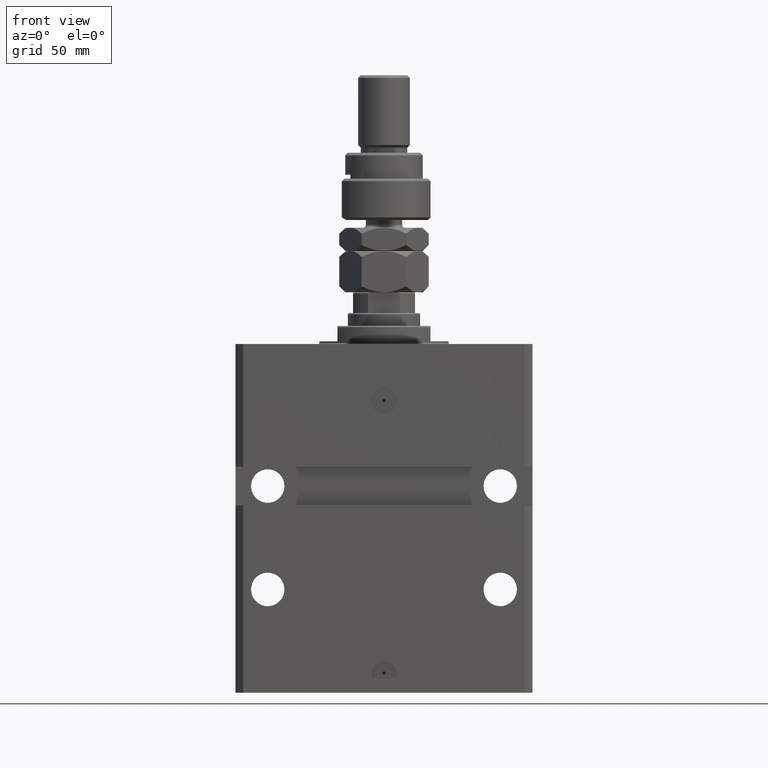
[diagram: clean part render]
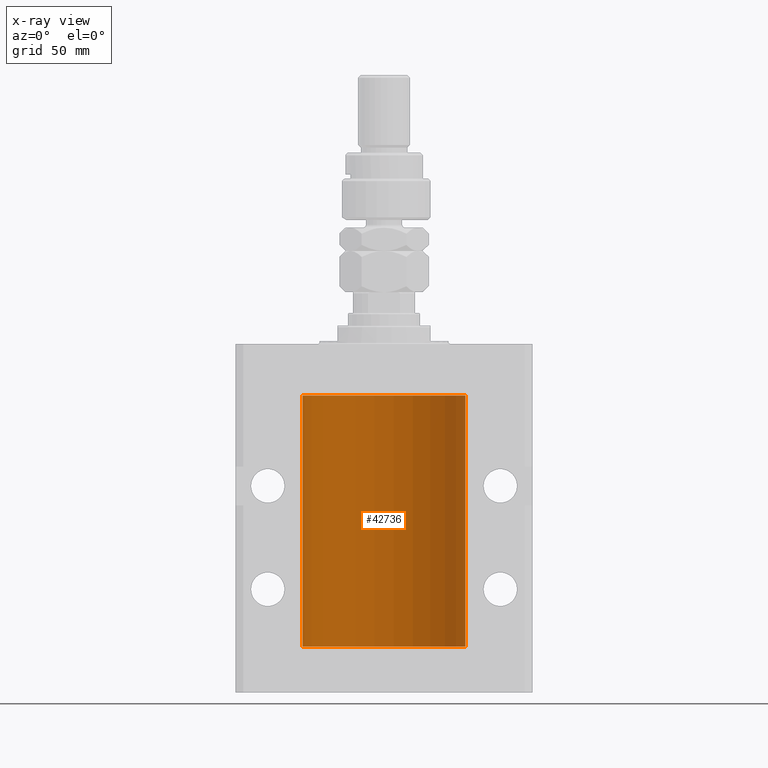
[diagram: x-ray — body ghosted, one internal face saturated and labeled with its STEP entity id]
A machine part, front view, then the same camera in x-ray: the body is ghosted and one INTERNAL B-rep face — a face not visible from any outside direction — is saturated and labeled: STEP entity #42736.
In plain terms, the highlighted cylindrical surface (partial cylindrical patch) has radius 31.5 mm, axis along (0, 0, 1).
Its self-contained STEP definition (entity closure, byte-faithful):
#32 = VERTEX_POINT ( 'NONE', #19271 ) ;
#309 = CARTESIAN_POINT ( 'NONE',  ( -31.49379784581975983, 0.6250577973157598333, -29.16284184848847971 ) ) ;
#891 = CYLINDRICAL_SURFACE ( 'NONE', #40898, 31.50000000000000000 ) ;
#1158 = CARTESIAN_POINT ( 'NONE',  ( 31.49526225382467359, 0.5586305680866429091, -113.6747616062215229 ) ) ;
#1171 = CARTESIAN_POINT ( 'NONE',  ( 31.50000000000000000, -2.492939093807799249E-15, -114.6250000000000000 ) ) ;
#2053 = CARTESIAN_POINT ( 'NONE',  ( 31.50000000000000000, 0.000000000000000000, -117.0999999999999943 ) ) ;
#2196 = CARTESIAN_POINT ( 'NONE',  ( 31.50000000000006395, 3.442404531757459093E-13, -28.37499999999677058 ) ) ;
#3159 = CARTESIAN_POINT ( 'NONE',  ( 31.50000000000000000, 1.559778271476245299E-15, -29.62500000000000000 ) ) ;
#3361 = DIRECTION ( 'NONE',  ( -0.000000000000000000, -0.000000000000000000, 1.000000000000000000 ) ) ;
#3708 = CARTESIAN_POINT ( 'NONE',  ( 31.49966575203785268, 0.1636755595825563903, -114.6087303082118893 ) ) ;
#4343 = EDGE_CURVE ( 'NONE', #47359, #36061, #10410, .T. ) ;
#4527 = LINE ( 'NONE', #4797, #8738 ) ;
#4619 = ORIENTED_EDGE ( 'NONE', *, *, #16271, .F. ) ;
#4797 = CARTESIAN_POINT ( 'NONE',  ( -31.50000000000000000, 3.857637417314161900E-15, -117.0999999999999943 ) ) ;
#4924 = EDGE_CURVE ( 'NONE', #48876, #36061, #27543, .T. ) ;
#4972 = EDGE_CURVE ( 'NONE', #11986, #13727, #38192, .T. ) ;
#5017 = DIRECTION ( 'NONE',  ( -0.000000000000000000, -0.000000000000000000, 1.000000000000000000 ) ) ;
#7570 = ORIENTED_EDGE ( 'NONE', *, *, #10464, .T. ) ;
#7691 = CARTESIAN_POINT ( 'NONE',  ( 31.49851501686590893, 0.3150934959385818801, -114.5459472188385917 ) ) ;
#7986 = VECTOR ( 'NONE', #22650, 1000.000000000000000 ) ;
#8179 = CARTESIAN_POINT ( 'NONE',  ( 31.50000000000000000, 0.08261130139622085977, -29.62500000000000000 ) ) ;
#8738 = VECTOR ( 'NONE', #20740, 1000.000000000000000 ) ;
#9237 = CARTESIAN_POINT ( 'NONE',  ( 0.000000000000000000, 0.000000000000000000, -20.00000000000000355 ) ) ;
#9368 = CARTESIAN_POINT ( 'NONE',  ( 31.49853627283156499, 0.3253078817183361338, -28.44140989403645747 ) ) ;
#9926 = CARTESIAN_POINT ( 'NONE',  ( -31.49526081842315151, 0.5587119163470788408, -114.3251151309305413 ) ) ;
#10410 = LINE ( 'NONE', #42838, #7986 ) ;
#10464 = EDGE_CURVE ( 'NONE', #47127, #29589, #42903, .T. ) ;
#10646 = ORIENTED_EDGE ( 'NONE', *, *, #30470, .T. ) ;
#11383 = CARTESIAN_POINT ( 'NONE',  ( 31.49770674525947101, 0.3844410175904603433, -29.49948347834465068 ) ) ;
#11493 = CARTESIAN_POINT ( 'NONE',  ( -31.49853548231893541, 0.3253851488062241559, -29.55855470525682094 ) ) ;
#11840 = VECTOR ( 'NONE', #5017, 1000.000000000000000 ) ;
#11973 = ORIENTED_EDGE ( 'NONE', *, *, #35814, .T. ) ;
#11986 = VERTEX_POINT ( 'NONE', #36033 ) ;
#12038 = ORIENTED_EDGE ( 'NONE', *, *, #4972, .T. ) ;
#12162 = CARTESIAN_POINT ( 'NONE',  ( 31.49966575203785268, 0.1636755595825553355, -29.60873030821187157 ) ) ;
#12268 = EDGE_CURVE ( 'NONE', #49400, #21559, #30804, .T. ) ;
#12433 = EDGE_CURVE ( 'NONE', #47359, #18984, #46615, .T. ) ;
#13528 = CARTESIAN_POINT ( 'NONE',  ( 31.50000000000000000, 1.559778271476245299E-15, -29.62500000000000000 ) ) ;
#13727 = VERTEX_POINT ( 'NONE', #1171 ) ;
#13868 = CARTESIAN_POINT ( 'NONE',  ( 31.49379899281745665, 0.6250000000082756024, -28.99999999999905853 ) ) ;
#14406 = ORIENTED_EDGE ( 'NONE', *, *, #39325, .T. ) ;
#14610 = AXIS2_PLACEMENT_3D ( 'NONE', #17326, #25585, #49004 ) ;
#15204 = CARTESIAN_POINT ( 'NONE',  ( -31.50000000000000000, 3.857637417314161900E-15, -20.00000000000000355 ) ) ;
#15991 = CARTESIAN_POINT ( 'NONE',  ( -31.50000000000000000, 0.1631661150515231473, -29.62499999999986144 ) ) ;
#16042 = DIRECTION ( 'NONE',  ( -0.000000000000000000, -0.000000000000000000, 1.000000000000000000 ) ) ;
#16271 = EDGE_CURVE ( 'NONE', #11986, #27000, #18872, .T. ) ;
#16305 = CARTESIAN_POINT ( 'NONE',  ( 31.50000000000000000, 0.000000000000000000, -117.0999999999999943 ) ) ;
#17092 = CARTESIAN_POINT ( 'NONE',  ( -31.50000000000006395, 3.480981129463732167E-13, -114.6250000000032401 ) ) ;
#17326 = CARTESIAN_POINT ( 'NONE',  ( 0.000000000000000000, 0.000000000000000000, -117.0999999999999943 ) ) ;
#17357 = CARTESIAN_POINT ( 'NONE',  ( 31.49853627283156499, 0.3253078817183396310, -113.4414098940364681 ) ) ;
#17883 = CARTESIAN_POINT ( 'NONE',  ( -31.49770767031180441, 0.3843648832734344878, -113.5004608125965717 ) ) ;
#18872 = CIRCLE ( 'NONE', #14610, 31.50000000000000000 ) ;
#18984 = VERTEX_POINT ( 'NONE', #40937 ) ;
#19017 = ORIENTED_EDGE ( 'NONE', *, *, #12433, .T. ) ;
#19038 = EDGE_CURVE ( 'NONE', #49400, #18984, #4527, .T. ) ;
#19128 = ORIENTED_EDGE ( 'NONE', *, *, #4924, .T. ) ;
#19271 = CARTESIAN_POINT ( 'NONE',  ( 31.49379899281745665, 0.6250000000082825968, -113.9999999999990621 ) ) ;
#19671 = VERTEX_POINT ( 'NONE', #41019 ) ;
#19995 = CARTESIAN_POINT ( 'NONE',  ( -31.50000000000000000, 6.759071642563815395E-15, -28.37500000000000355 ) ) ;
#20740 = DIRECTION ( 'NONE',  ( -0.000000000000000000, -0.000000000000000000, 1.000000000000000000 ) ) ;
#21355 = CARTESIAN_POINT ( 'NONE',  ( 31.49379899281745665, 0.6250000000082825968, -113.9999999999990621 ) ) ;
#21559 = VERTEX_POINT ( 'NONE', #30123 ) ;
#22020 = CARTESIAN_POINT ( 'NONE',  ( -31.50000000000000000, 3.857637417314161900E-15, -117.0999999999999943 ) ) ;
#22140 = CARTESIAN_POINT ( 'NONE',  ( -31.49999999999999289, 0.08259258789479095864, -113.3749999999999858 ) ) ;
#22387 = ORIENTED_EDGE ( 'NONE', *, *, #19038, .F. ) ;
#22650 = DIRECTION ( 'NONE',  ( -0.000000000000000000, -0.000000000000000000, 1.000000000000000000 ) ) ;
#22658 = CARTESIAN_POINT ( 'NONE',  ( 31.50000000000000000, 0.1631291455194384676, -28.37500000000015277 ) ) ;
#23404 = CARTESIAN_POINT ( 'NONE',  ( 31.49527883250257432, 0.5574151849338155884, -114.3263860845475364 ) ) ;
#23911 = CARTESIAN_POINT ( 'NONE',  ( 31.49770674525946390, 0.3844410175904657834, -114.4994834783446436 ) ) ;
#23981 = CARTESIAN_POINT ( 'NONE',  ( -31.49999999999999289, 0.08259258789479796692, -28.37500000000000711 ) ) ;
#24327 = CARTESIAN_POINT ( 'NONE',  ( 31.50000000000000000, 0.1631291455194407158, -113.3750000000001563 ) ) ;
#24710 = ORIENTED_EDGE ( 'NONE', *, *, #12268, .T. ) ;
#24773 = CARTESIAN_POINT ( 'NONE',  ( -31.49851563474691218, 0.3150284575672402942, -28.45401791159624239 ) ) ;
#25097 = FACE_OUTER_BOUND ( 'NONE', #28571, .T. ) ;
#25105 = CARTESIAN_POINT ( 'NONE',  ( -31.50000000000000000, 0.1631661150515248127, -114.6249999999998721 ) ) ;
#25368 = CARTESIAN_POINT ( 'NONE',  ( -31.49966591610109390, 0.1636376958180598418, -113.3912618999583657 ) ) ;
#25585 = DIRECTION ( 'NONE',  ( 0.000000000000000000, 0.000000000000000000, 1.000000000000000000 ) ) ;
#25810 = CARTESIAN_POINT ( 'NONE',  ( 31.49379899281745665, 0.6250000000082756024, -28.99999999999905853 ) ) ;
#27000 = VERTEX_POINT ( 'NONE', #30291 ) ;
#27543 = CIRCLE ( 'NONE', #46197, 31.50000000000000000 ) ;
#28384 = CARTESIAN_POINT ( 'NONE',  ( 31.49379899281745665, 0.6250000000082756024, -28.99999999999905853 ) ) ;
#28571 = EDGE_LOOP ( 'NONE', ( #28853, #4619, #12038, #10646, #14406, #32378, #7570, #45557, #11973, #19128, #28732, #19017, #22387, #24710 ) ) ;
#28732 = ORIENTED_EDGE ( 'NONE', *, *, #4343, .F. ) ;
#28853 = ORIENTED_EDGE ( 'NONE', *, *, #36549, .F. ) ;
#29589 = VERTEX_POINT ( 'NONE', #25810 ) ;
#30123 = CARTESIAN_POINT ( 'NONE',  ( -31.50000000000006395, 3.480981129463732167E-13, -114.6250000000032401 ) ) ;
#30227 = DIRECTION ( 'NONE',  ( -0.000000000000000000, -0.000000000000000000, 1.000000000000000000 ) ) ;
#30291 = CARTESIAN_POINT ( 'NONE',  ( -31.50000000000000000, 3.857637417314161900E-15, -117.0999999999999943 ) ) ;
#30320 = B_SPLINE_CURVE_WITH_KNOTS ( 'NONE', 3,
 ( #13868, #46566, #49793, #9368, #22658, #2196 ),
 .UNSPECIFIED., .F., .F.,
 ( 4, 2, 4 ),
 ( 0.0009772631991206560780, 0.001465673424414190877, 0.001954083649707725676 ),
 .UNSPECIFIED. ) ;
#30470 = EDGE_CURVE ( 'NONE', #13727, #32, #42560, .T. ) ;
#30804 = B_SPLINE_CURVE_WITH_KNOTS ( 'NONE', 3,
 ( #45284, #22140, #25368, #34101, #17883, #41556, #50325, #33837, #9926, #42343, #25105, #17092 ),
 .UNSPECIFIED., .F., .F.,
 ( 4, 2, 2, 2, 2, 4 ),
 ( 3.062184955773984539E-18, 0.0002442604562134841409, 0.0004885209124269652460, 0.0009770418248538977491, 0.001465562737280830252, 0.001954083649707762538 ),
 .UNSPECIFIED. ) ;
#31383 = CARTESIAN_POINT ( 'NONE',  ( -31.50000000000000000, -2.862469004324082213E-15, -113.3750000000000000 ) ) ;
#31480 = VERTEX_POINT ( 'NONE', #35330 ) ;
#31683 = CARTESIAN_POINT ( 'NONE',  ( -31.49770767031179730, 0.3843648832734374854, -28.50046081259655040 ) ) ;
#31880 = CARTESIAN_POINT ( 'NONE',  ( 31.50000000000000000, -2.492939093807799249E-15, -114.6250000000000000 ) ) ;
#32354 = CARTESIAN_POINT ( 'NONE',  ( 31.49527883250256721, 0.5574151849338075948, -29.32638608454754703 ) ) ;
#32378 = ORIENTED_EDGE ( 'NONE', *, *, #41278, .T. ) ;
#32799 = LINE ( 'NONE', #16305, #37327 ) ;
#33837 = CARTESIAN_POINT ( 'NONE',  ( -31.49379784581975272, 0.6250577973157633860, -114.1628418484884548 ) ) ;
#34101 = CARTESIAN_POINT ( 'NONE',  ( -31.49851563474690508, 0.3150284575672371301, -113.4540179115962246 ) ) ;
#34766 = B_SPLINE_CURVE_WITH_KNOTS ( 'NONE', 3,
 ( #21355, #45024, #1158, #17357, #24327, #48768 ),
 .UNSPECIFIED., .F., .F.,
 ( 4, 2, 4 ),
 ( 0.0009772631991206588969, 0.001465673424414194563, 0.001954083649707730446 ),
 .UNSPECIFIED. ) ;
#35330 = CARTESIAN_POINT ( 'NONE',  ( 31.50000000000006395, 3.442404531757459093E-13, -28.37499999999677058 ) ) ;
#35814 = EDGE_CURVE ( 'NONE', #31480, #48876, #32799, .T. ) ;
#36033 = CARTESIAN_POINT ( 'NONE',  ( 31.50000000000000000, 0.000000000000000000, -117.0999999999999943 ) ) ;
#36061 = VERTEX_POINT ( 'NONE', #15204 ) ;
#36207 = CARTESIAN_POINT ( 'NONE',  ( -31.49966591610109390, 0.1636376958180632002, -28.39126189995839411 ) ) ;
#36397 = CARTESIAN_POINT ( 'NONE',  ( 31.50000000000000000, 0.08261130139621999935, -114.6250000000000000 ) ) ;
#36549 = EDGE_CURVE ( 'NONE', #27000, #21559, #37695, .T. ) ;
#36722 = CARTESIAN_POINT ( 'NONE',  ( -31.49380014137585704, 0.6249421240571523262, -28.83671479190291365 ) ) ;
#37327 = VECTOR ( 'NONE', #49029, 1000.000000000000000 ) ;
#37695 = LINE ( 'NONE', #22020, #11840 ) ;
#38192 = LINE ( 'NONE', #2053, #42816 ) ;
#39325 = EDGE_CURVE ( 'NONE', #32, #19671, #34766, .T. ) ;
#39338 = CARTESIAN_POINT ( 'NONE',  ( 31.49379899281760942, 0.6250000000003405054, -114.1631035286269906 ) ) ;
#39830 = CARTESIAN_POINT ( 'NONE',  ( -31.50000000000000000, 6.759071642563815395E-15, -28.37500000000000355 ) ) ;
#40063 = CARTESIAN_POINT ( 'NONE',  ( 31.49851501686590893, 0.3150934959385778278, -29.54594721883858099 ) ) ;
#40898 = AXIS2_PLACEMENT_3D ( 'NONE', #52482, #16042, #44489 ) ;
#40937 = CARTESIAN_POINT ( 'NONE',  ( -31.50000000000006395, 3.480980906124966778E-13, -29.62500000000323297 ) ) ;
#41019 = CARTESIAN_POINT ( 'NONE',  ( 31.50000000000006395, 3.442404755096224483E-13, -113.3749999999967741 ) ) ;
#41278 = EDGE_CURVE ( 'NONE', #19671, #47127, #51494, .T. ) ;
#41556 = CARTESIAN_POINT ( 'NONE',  ( -31.49528028230855270, 0.5573323339569572488, -113.6734900881931907 ) ) ;
#42343 = CARTESIAN_POINT ( 'NONE',  ( -31.49853548231895672, 0.3253851488062226571, -114.5585547052568671 ) ) ;
#42560 = B_SPLINE_CURVE_WITH_KNOTS ( 'NONE', 3,
 ( #31880, #36397, #3708, #7691, #23911, #23404, #39338, #52364 ),
 .UNSPECIFIED., .F., .F.,
 ( 4, 2, 2, 4 ),
 ( 2.422664849601941982E-18, 0.0002443157997801665674, 0.0004886315995603306411, 0.0009772631991206588969 ),
 .UNSPECIFIED. ) ;
#42736 = ADVANCED_FACE ( 'NONE', ( #25097 ), #891, .F. ) ;
#42816 = VECTOR ( 'NONE', #30227, 1000.000000000000000 ) ;
#42838 = CARTESIAN_POINT ( 'NONE',  ( -31.50000000000000000, 3.857637417314161900E-15, -117.0999999999999943 ) ) ;
#42903 = B_SPLINE_CURVE_WITH_KNOTS ( 'NONE', 3,
 ( #3159, #8179, #12162, #40063, #11383, #32354, #44065, #28384 ),
 .UNSPECIFIED., .F., .F.,
 ( 4, 2, 2, 4 ),
 ( 3.238208634416540241E-18, 0.0002443157997801682479, 0.0004886315995603332431, 0.0009772631991206560780 ),
 .UNSPECIFIED. ) ;
#44065 = CARTESIAN_POINT ( 'NONE',  ( 31.49379899281760942, 0.6250000000003356204, -29.16310352862698707 ) ) ;
#44433 = CARTESIAN_POINT ( 'NONE',  ( -31.50000000000006395, 3.480980906124966778E-13, -29.62500000000323297 ) ) ;
#44489 = DIRECTION ( 'NONE',  ( 1.000000000000000000, 0.000000000000000000, 0.000000000000000000 ) ) ;
#45024 = CARTESIAN_POINT ( 'NONE',  ( 31.49379899281762363, 0.6249999999996236344, -113.8369703653306289 ) ) ;
#45284 = CARTESIAN_POINT ( 'NONE',  ( -31.50000000000000000, -2.862469004324082213E-15, -113.3750000000000000 ) ) ;
#45557 = ORIENTED_EDGE ( 'NONE', *, *, #48068, .T. ) ;
#46174 = DIRECTION ( 'NONE',  ( 0.000000000000000000, 0.000000000000000000, 1.000000000000000000 ) ) ;
#46197 = AXIS2_PLACEMENT_3D ( 'NONE', #9237, #46174, #50704 ) ;
#46566 = CARTESIAN_POINT ( 'NONE',  ( 31.49379899281762363, 0.6249999999996150857, -28.83697036533062885 ) ) ;
#46615 = B_SPLINE_CURVE_WITH_KNOTS ( 'NONE', 3,
 ( #19995, #23981, #36207, #24773, #31683, #47918, #36722, #309, #48435, #11493, #15991, #44433 ),
 .UNSPECIFIED., .F., .F.,
 ( 4, 2, 2, 2, 2, 4 ),
 ( 5.360009401240440187E-19, 0.0002442604562134703173, 0.0004885209124269400925, 0.0009770418248538795345, 0.001465562737280818977, 0.001954083649707758635 ),
 .UNSPECIFIED. ) ;
#47127 = VERTEX_POINT ( 'NONE', #13528 ) ;
#47359 = VERTEX_POINT ( 'NONE', #39830 ) ;
#47918 = CARTESIAN_POINT ( 'NONE',  ( -31.49528028230855270, 0.5573323339569594692, -28.67349008819320844 ) ) ;
#47996 = CARTESIAN_POINT ( 'NONE',  ( 31.50000000000000000, 0.000000000000000000, -20.00000000000000355 ) ) ;
#48068 = EDGE_CURVE ( 'NONE', #29589, #31480, #30320, .T. ) ;
#48435 = CARTESIAN_POINT ( 'NONE',  ( -31.49526081842315151, 0.5587119163470772865, -29.32511513093050937 ) ) ;
#48768 = CARTESIAN_POINT ( 'NONE',  ( 31.50000000000006395, 3.442404755096224483E-13, -113.3749999999967741 ) ) ;
#48876 = VERTEX_POINT ( 'NONE', #47996 ) ;
#49004 = DIRECTION ( 'NONE',  ( 1.000000000000000000, 0.000000000000000000, 0.000000000000000000 ) ) ;
#49029 = DIRECTION ( 'NONE',  ( -0.000000000000000000, -0.000000000000000000, 1.000000000000000000 ) ) ;
#49400 = VERTEX_POINT ( 'NONE', #31383 ) ;
#49793 = CARTESIAN_POINT ( 'NONE',  ( 31.49526225382467359, 0.5586305680866376910, -28.67476160622149806 ) ) ;
#50325 = CARTESIAN_POINT ( 'NONE',  ( -31.49380014137585704, 0.6249421240571484404, -113.8367147919028923 ) ) ;
#50704 = DIRECTION ( 'NONE',  ( 1.000000000000000000, 0.000000000000000000, 0.000000000000000000 ) ) ;
#51494 = LINE ( 'NONE', #51745, #51905 ) ;
#51745 = CARTESIAN_POINT ( 'NONE',  ( 31.50000000000000000, 0.000000000000000000, -117.0999999999999943 ) ) ;
#51905 = VECTOR ( 'NONE', #3361, 1000.000000000000000 ) ;
#52364 = CARTESIAN_POINT ( 'NONE',  ( 31.49379899281745665, 0.6250000000082825968, -113.9999999999990621 ) ) ;
#52482 = CARTESIAN_POINT ( 'NONE',  ( 0.000000000000000000, 0.000000000000000000, -117.0999999999999943 ) ) ;